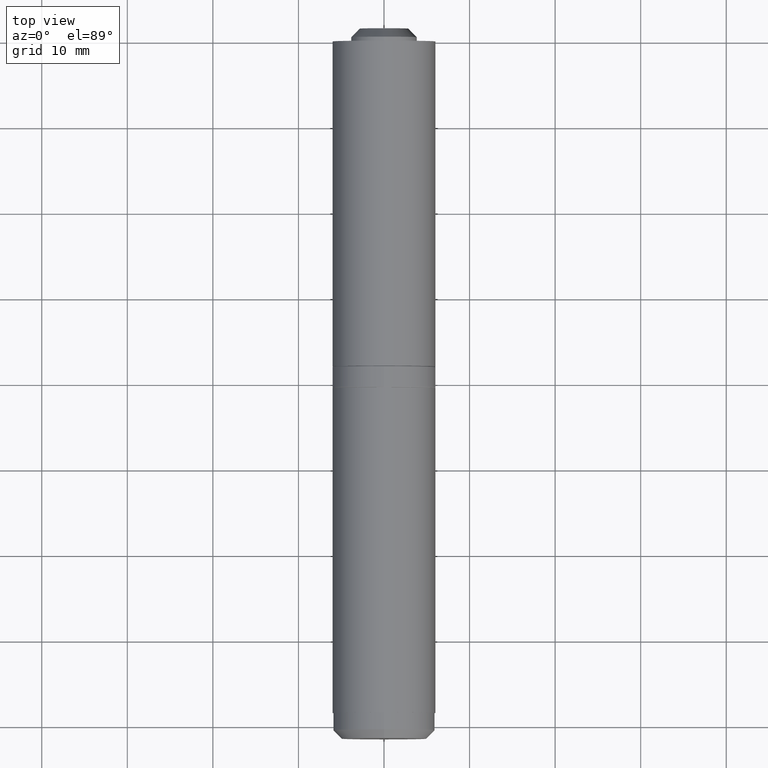
[diagram: clean part render]
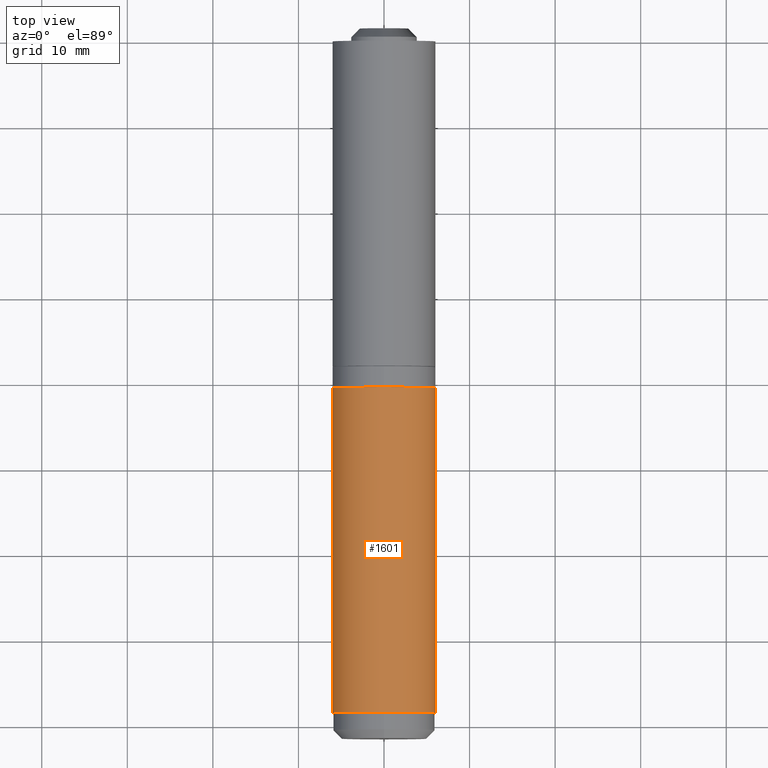
[diagram: same view with one face highlighted and labeled with its STEP entity id]
A machine part, top view. The second image highlights one B-rep face of the part: STEP entity #1601.
In plain terms, the highlighted cylindrical surface (partial cylindrical patch) has radius 6 mm, axis along (-0, -1, -0).
Its self-contained STEP definition (entity closure, byte-faithful):
#1005 = DIRECTION ( 'NONE',  ( -0.000000000000000000, -1.000000000000000000, -0.000000000000000000 ) ) ;
#1478 = AXIS2_PLACEMENT_3D ( 'NONE', #10545, #6833, #3335 ) ;
#1601 = ADVANCED_FACE ( 'NONE', ( #13693 ), #11689, .T. ) ;
#3335 = DIRECTION ( 'NONE',  ( 0.000000000000000000, 0.000000000000000000, 1.000000000000000000 ) ) ;
#3879 = EDGE_CURVE ( 'NONE', #6322, #12013, #10375, .T. ) ;
#4015 = DIRECTION ( 'NONE',  ( 0.000000000000000000, 1.000000000000000000, 0.000000000000000000 ) ) ;
#4999 = EDGE_LOOP ( 'NONE', ( #12365, #11768, #14458, #6526 ) ) ;
#5014 = CARTESIAN_POINT ( 'NONE',  ( 0.000000000000000000, 19.00000000000000000, 0.000000000000000000 ) ) ;
#5265 = CARTESIAN_POINT ( 'NONE',  ( 0.000000000000000000, 19.00000000000000000, 0.000000000000000000 ) ) ;
#5504 = VERTEX_POINT ( 'NONE', #11864 ) ;
#6293 = AXIS2_PLACEMENT_3D ( 'NONE', #5265, #8775, #6538 ) ;
#6322 = VERTEX_POINT ( 'NONE', #13557 ) ;
#6526 = ORIENTED_EDGE ( 'NONE', *, *, #8536, .T. ) ;
#6538 = DIRECTION ( 'NONE',  ( 0.000000000000000000, 0.000000000000000000, -1.000000000000000000 ) ) ;
#6635 = VERTEX_POINT ( 'NONE', #10599 ) ;
#6722 = VECTOR ( 'NONE', #1005, 1000.000000000000000 ) ;
#6833 = DIRECTION ( 'NONE',  ( 0.000000000000000000, 1.000000000000000000, 0.000000000000000000 ) ) ;
#7187 = AXIS2_PLACEMENT_3D ( 'NONE', #5014, #4015, #13274 ) ;
#7473 = CIRCLE ( 'NONE', #7187, 5.999999999999999112 ) ;
#8047 = EDGE_CURVE ( 'NONE', #6635, #12013, #11779, .T. ) ;
#8536 = EDGE_CURVE ( 'NONE', #5504, #6635, #14710, .T. ) ;
#8775 = DIRECTION ( 'NONE',  ( -0.000000000000000000, -1.000000000000000000, -0.000000000000000000 ) ) ;
#9238 = CARTESIAN_POINT ( 'NONE',  ( 3.412500000000000089, 19.00000000000000000, -4.935062689571429573 ) ) ;
#9370 = CARTESIAN_POINT ( 'NONE',  ( -3.412499999999998757, 19.00000000000000000, -4.935062689571429573 ) ) ;
#10375 = LINE ( 'NONE', #9238, #6722 ) ;
#10545 = CARTESIAN_POINT ( 'NONE',  ( 0.000000000000000000, -19.00000000000000355, 0.000000000000000000 ) ) ;
#10599 = CARTESIAN_POINT ( 'NONE',  ( -3.412499999999998757, -19.00000000000000355, -4.935062689571429573 ) ) ;
#11136 = EDGE_CURVE ( 'NONE', #5504, #6322, #7473, .T. ) ;
#11174 = CARTESIAN_POINT ( 'NONE',  ( 3.412500000000000089, -19.00000000000000355, -4.935062689571429573 ) ) ;
#11603 = VECTOR ( 'NONE', #14184, 1000.000000000000000 ) ;
#11689 = CYLINDRICAL_SURFACE ( 'NONE', #6293, 5.999999999999999112 ) ;
#11768 = ORIENTED_EDGE ( 'NONE', *, *, #3879, .F. ) ;
#11779 = CIRCLE ( 'NONE', #1478, 5.999999999999999112 ) ;
#11864 = CARTESIAN_POINT ( 'NONE',  ( -3.412499999999998757, 19.00000000000000000, -4.935062689571429573 ) ) ;
#12013 = VERTEX_POINT ( 'NONE', #11174 ) ;
#12365 = ORIENTED_EDGE ( 'NONE', *, *, #8047, .T. ) ;
#13274 = DIRECTION ( 'NONE',  ( 0.000000000000000000, 0.000000000000000000, 1.000000000000000000 ) ) ;
#13557 = CARTESIAN_POINT ( 'NONE',  ( 3.412500000000000089, 19.00000000000000000, -4.935062689571429573 ) ) ;
#13693 = FACE_OUTER_BOUND ( 'NONE', #4999, .T. ) ;
#14184 = DIRECTION ( 'NONE',  ( -0.000000000000000000, -1.000000000000000000, -0.000000000000000000 ) ) ;
#14458 = ORIENTED_EDGE ( 'NONE', *, *, #11136, .F. ) ;
#14710 = LINE ( 'NONE', #9370, #11603 ) ;